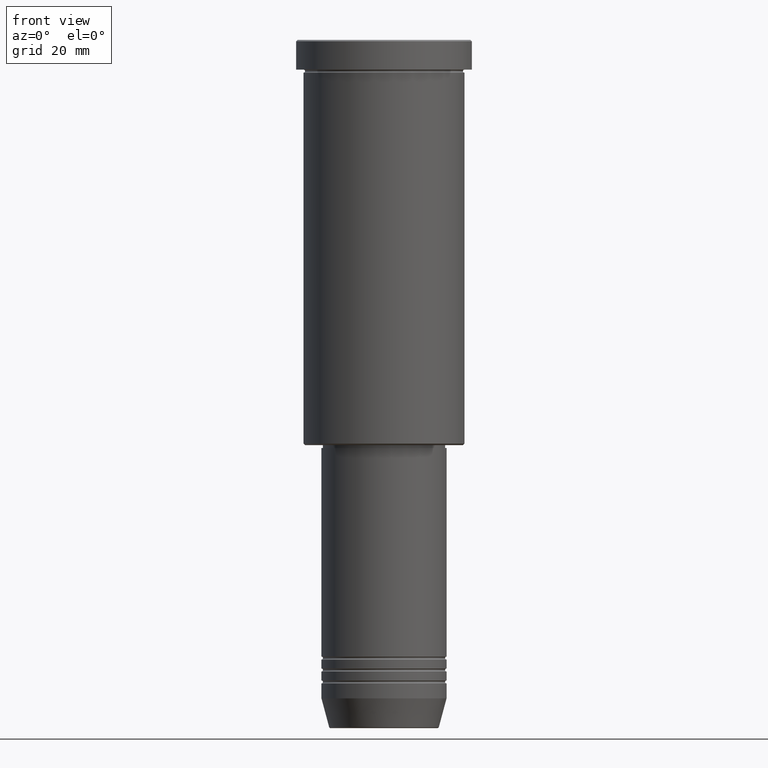
[diagram: clean part render]
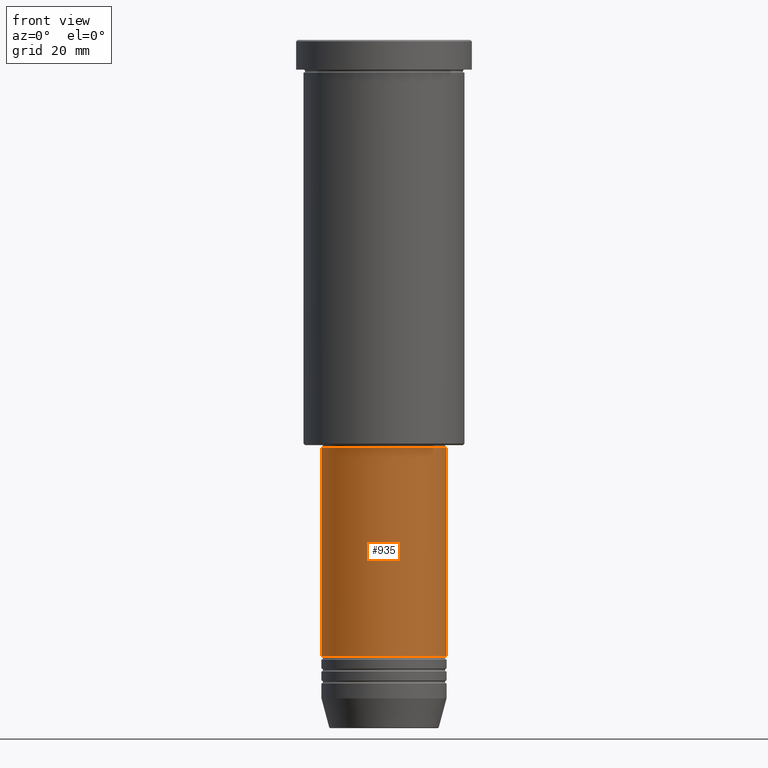
[diagram: same view with one face highlighted and labeled with its STEP entity id]
A machine part, front view. The second image highlights one B-rep face of the part: STEP entity #935.
In plain terms, the highlighted cylindrical surface (partial cylindrical patch) has radius 21 mm, axis along (-0, -0, 1).
Its self-contained STEP definition (entity closure, byte-faithful):
#2 = DIRECTION ( 'NONE',  ( -0.000000000000000000, -0.000000000000000000, 1.000000000000000000 ) ) ;
#11 = EDGE_CURVE ( 'NONE', #400, #724, #15, .T. ) ;
#15 = CIRCLE ( 'NONE', #162, 20.99999999999999645 ) ;
#51 = EDGE_CURVE ( 'NONE', #692, #400, #1058, .T. ) ;
#74 = CYLINDRICAL_SURFACE ( 'NONE', #1066, 20.99999999999999645 ) ;
#161 = EDGE_CURVE ( 'NONE', #235, #724, #1004, .T. ) ;
#162 = AXIS2_PLACEMENT_3D ( 'NONE', #475, #1180, #912 ) ;
#182 = FACE_OUTER_BOUND ( 'NONE', #808, .T. ) ;
#235 = VERTEX_POINT ( 'NONE', #1068 ) ;
#279 = DIRECTION ( 'NONE',  ( -0.000000000000000000, -0.000000000000000000, 1.000000000000000000 ) ) ;
#350 = AXIS2_PLACEMENT_3D ( 'NONE', #1097, #2, #377 ) ;
#356 = CARTESIAN_POINT ( 'NONE',  ( -20.99999999999999645, 2.571758278209441267E-15, -137.0000000000000284 ) ) ;
#375 = EDGE_CURVE ( 'NONE', #692, #235, #741, .T. ) ;
#377 = DIRECTION ( 'NONE',  ( 1.000000000000000000, 0.000000000000000000, 0.000000000000000000 ) ) ;
#379 = ORIENTED_EDGE ( 'NONE', *, *, #51, .F. ) ;
#400 = VERTEX_POINT ( 'NONE', #356 ) ;
#475 = CARTESIAN_POINT ( 'NONE',  ( 0.000000000000000000, 0.000000000000000000, -137.0000000000000284 ) ) ;
#507 = ORIENTED_EDGE ( 'NONE', *, *, #161, .T. ) ;
#545 = CARTESIAN_POINT ( 'NONE',  ( 0.000000000000000000, 0.000000000000000000, 0.000000000000000000 ) ) ;
#619 = CARTESIAN_POINT ( 'NONE',  ( -21.00000000000000000, 2.571758278209441661E-15, -206.9999999999999432 ) ) ;
#664 = VECTOR ( 'NONE', #279, 1000.000000000000000 ) ;
#692 = VERTEX_POINT ( 'NONE', #619 ) ;
#724 = VERTEX_POINT ( 'NONE', #743 ) ;
#734 = CARTESIAN_POINT ( 'NONE',  ( 20.99999999999999645, 0.000000000000000000, 0.000000000000000000 ) ) ;
#741 = CIRCLE ( 'NONE', #350, 21.00000000000000000 ) ;
#743 = CARTESIAN_POINT ( 'NONE',  ( 20.99999999999999645, 0.000000000000000000, -137.0000000000000284 ) ) ;
#759 = CARTESIAN_POINT ( 'NONE',  ( -20.99999999999999645, 2.571758278209441267E-15, 0.000000000000000000 ) ) ;
#772 = DIRECTION ( 'NONE',  ( -0.000000000000000000, -0.000000000000000000, 1.000000000000000000 ) ) ;
#808 = EDGE_LOOP ( 'NONE', ( #379, #962, #507, #886 ) ) ;
#825 = DIRECTION ( 'NONE',  ( -0.000000000000000000, -0.000000000000000000, 1.000000000000000000 ) ) ;
#870 = VECTOR ( 'NONE', #772, 1000.000000000000000 ) ;
#886 = ORIENTED_EDGE ( 'NONE', *, *, #11, .F. ) ;
#912 = DIRECTION ( 'NONE',  ( 1.000000000000000000, 0.000000000000000000, 0.000000000000000000 ) ) ;
#935 = ADVANCED_FACE ( 'NONE', ( #182 ), #74, .T. ) ;
#962 = ORIENTED_EDGE ( 'NONE', *, *, #375, .T. ) ;
#1002 = DIRECTION ( 'NONE',  ( 1.000000000000000000, 0.000000000000000000, 0.000000000000000000 ) ) ;
#1004 = LINE ( 'NONE', #734, #664 ) ;
#1058 = LINE ( 'NONE', #759, #870 ) ;
#1066 = AXIS2_PLACEMENT_3D ( 'NONE', #545, #825, #1002 ) ;
#1068 = CARTESIAN_POINT ( 'NONE',  ( 21.00000000000000000, 0.000000000000000000, -206.9999999999999432 ) ) ;
#1097 = CARTESIAN_POINT ( 'NONE',  ( 0.000000000000000000, 0.000000000000000000, -206.9999999999999432 ) ) ;
#1180 = DIRECTION ( 'NONE',  ( -0.000000000000000000, -0.000000000000000000, 1.000000000000000000 ) ) ;